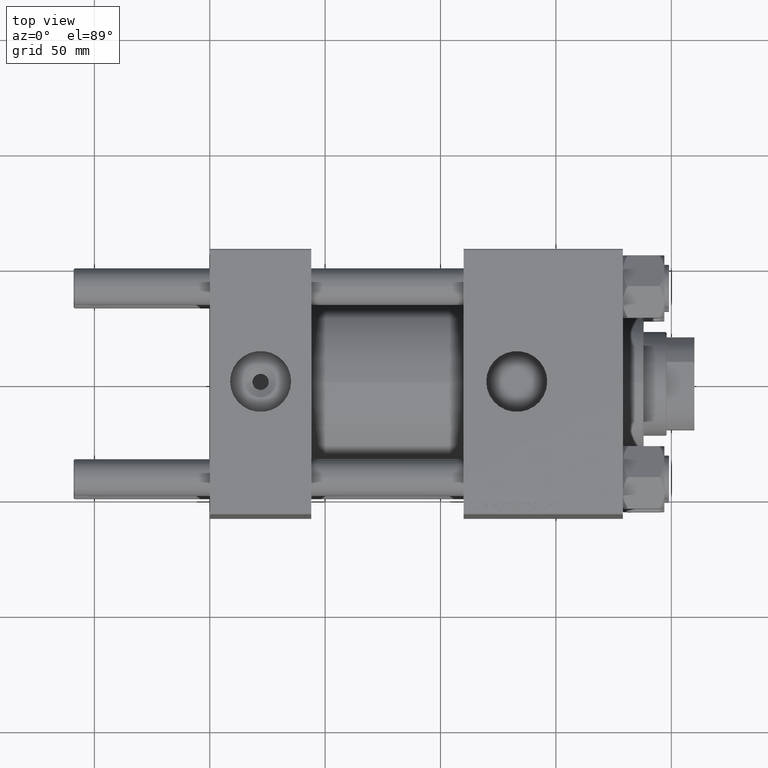
[diagram: clean part render]
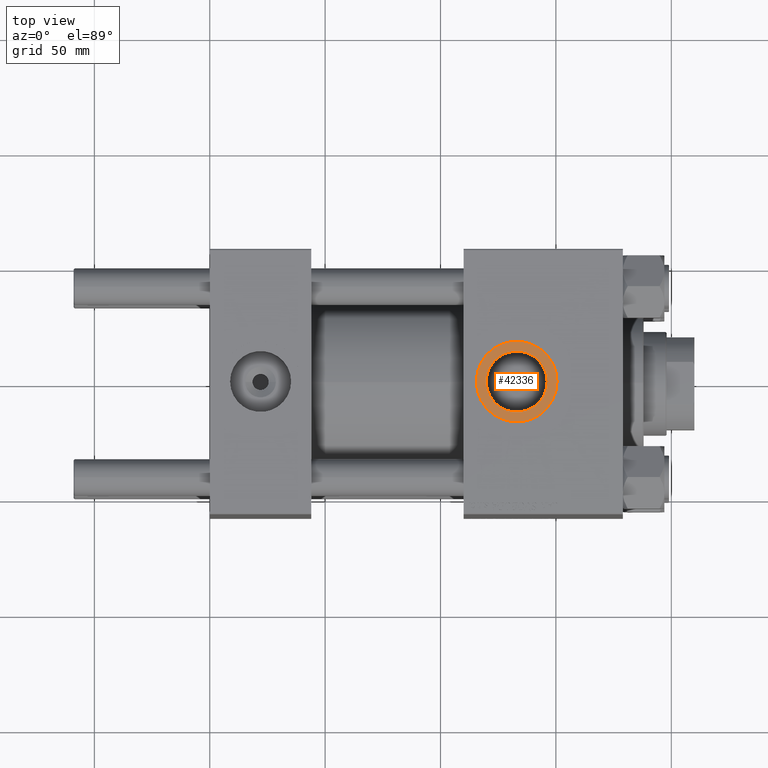
[diagram: same view with one face highlighted and labeled with its STEP entity id]
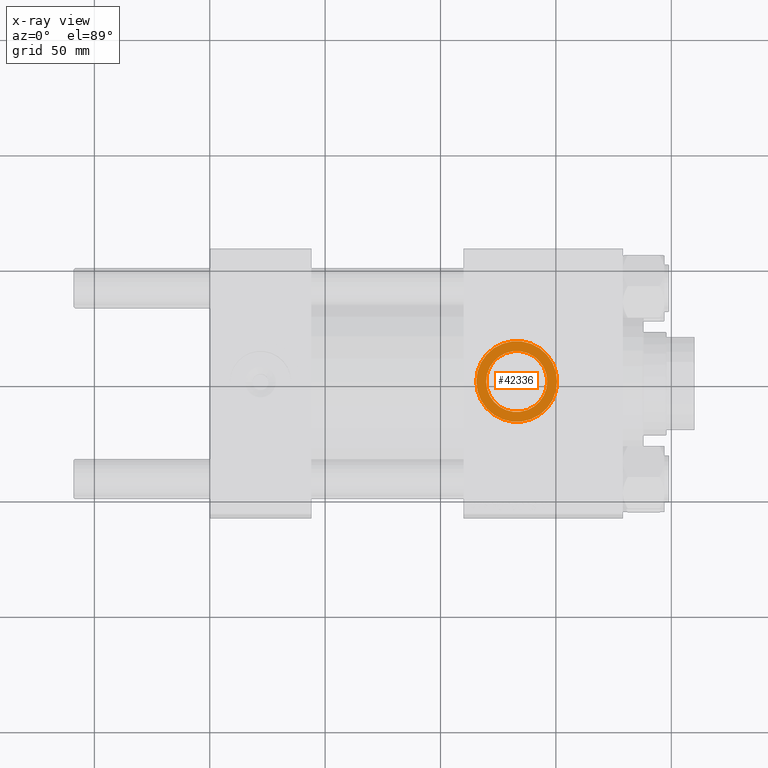
[diagram: x-ray of the same camera — body ghosted, the highlighted face saturated]
A machine part, top view. The second image highlights one B-rep face of the part: STEP entity #42336.
The next image is the same camera in x-ray: the body ghosted, the highlighted face saturated — about 0% of this face is hidden behind the body in this view.
In plain terms, the highlighted planar face has unit normal (0, 0, 1).
Its self-contained STEP definition (entity closure, byte-faithful):
#549 = DIRECTION ( 'NONE',  ( 0.000000000000000000, 0.000000000000000000, 1.000000000000000000 ) ) ;
#2524 = DIRECTION ( 'NONE',  ( 0.000000000000000000, 0.000000000000000000, 1.000000000000000000 ) ) ;
#3341 = CARTESIAN_POINT ( 'NONE',  ( 150.5000000000000284, -6.938893903907229955E-15, 57.30000000000000426 ) ) ;
#3408 = AXIS2_PLACEMENT_3D ( 'NONE', #38984, #2524, #50635 ) ;
#3451 = AXIS2_PLACEMENT_3D ( 'NONE', #25213, #47888, #7435 ) ;
#3536 = CARTESIAN_POINT ( 'NONE',  ( 133.0000000000000000, -6.938893903907229955E-15, 57.30000000000000426 ) ) ;
#4716 = DIRECTION ( 'NONE',  ( 1.000000000000000000, 0.000000000000000000, 0.000000000000000000 ) ) ;
#4971 = EDGE_CURVE ( 'NONE', #33843, #26056, #21984, .T. ) ;
#5145 = CIRCLE ( 'NONE', #3451, 17.50000000000001421 ) ;
#5732 = ORIENTED_EDGE ( 'NONE', *, *, #6065, .T. ) ;
#6065 = EDGE_CURVE ( 'NONE', #26056, #33843, #5145, .T. ) ;
#7122 = CIRCLE ( 'NONE', #13886, 13.22000000000000952 ) ;
#7435 = DIRECTION ( 'NONE',  ( 1.000000000000000000, 0.000000000000000000, 0.000000000000000000 ) ) ;
#8941 = EDGE_LOOP ( 'NONE', ( #28330, #40914 ) ) ;
#12454 = CARTESIAN_POINT ( 'NONE',  ( 133.0000000000000000, -6.938893903907229955E-15, 57.30000000000000426 ) ) ;
#13886 = AXIS2_PLACEMENT_3D ( 'NONE', #3536, #23617, #47954 ) ;
#13995 = AXIS2_PLACEMENT_3D ( 'NONE', #21350, #41708, #4716 ) ;
#16670 = DIRECTION ( 'NONE',  ( 1.000000000000000000, 0.000000000000000000, -0.000000000000000000 ) ) ;
#21350 = CARTESIAN_POINT ( 'NONE',  ( 133.0000000000000000, -6.938893903907229955E-15, 57.30000000000000426 ) ) ;
#21615 = CIRCLE ( 'NONE', #13995, 13.22000000000000952 ) ;
#21984 = CIRCLE ( 'NONE', #3408, 17.50000000000001421 ) ;
#23617 = DIRECTION ( 'NONE',  ( -0.000000000000000000, -0.000000000000000000, -1.000000000000000000 ) ) ;
#25213 = CARTESIAN_POINT ( 'NONE',  ( 133.0000000000000000, -6.938893903907229955E-15, 57.30000000000000426 ) ) ;
#26056 = VERTEX_POINT ( 'NONE', #39157 ) ;
#28330 = ORIENTED_EDGE ( 'NONE', *, *, #33570, .T. ) ;
#30183 = EDGE_CURVE ( 'NONE', #32262, #43329, #7122, .T. ) ;
#32262 = VERTEX_POINT ( 'NONE', #50026 ) ;
#32534 = FACE_BOUND ( 'NONE', #8941, .T. ) ;
#33570 = EDGE_CURVE ( 'NONE', #43329, #32262, #21615, .T. ) ;
#33843 = VERTEX_POINT ( 'NONE', #3341 ) ;
#35931 = EDGE_LOOP ( 'NONE', ( #36654, #5732 ) ) ;
#36654 = ORIENTED_EDGE ( 'NONE', *, *, #4971, .T. ) ;
#37031 = FACE_OUTER_BOUND ( 'NONE', #35931, .T. ) ;
#37845 = AXIS2_PLACEMENT_3D ( 'NONE', #12454, #549, #16670 ) ;
#38984 = CARTESIAN_POINT ( 'NONE',  ( 133.0000000000000000, -6.938893903907229955E-15, 57.30000000000000426 ) ) ;
#39157 = CARTESIAN_POINT ( 'NONE',  ( 115.4999999999999858, -4.795762005399357763E-15, 57.30000000000000426 ) ) ;
#40914 = ORIENTED_EDGE ( 'NONE', *, *, #30183, .T. ) ;
#41708 = DIRECTION ( 'NONE',  ( -0.000000000000000000, -0.000000000000000000, -1.000000000000000000 ) ) ;
#42336 = ADVANCED_FACE ( 'NONE', ( #32534, #37031 ), #48671, .T. ) ;
#43329 = VERTEX_POINT ( 'NONE', #50739 ) ;
#47888 = DIRECTION ( 'NONE',  ( 0.000000000000000000, 0.000000000000000000, 1.000000000000000000 ) ) ;
#47954 = DIRECTION ( 'NONE',  ( 1.000000000000000000, 0.000000000000000000, 0.000000000000000000 ) ) ;
#48671 = PLANE ( 'NONE',  #37845 ) ;
#50026 = CARTESIAN_POINT ( 'NONE',  ( 146.2200000000000273, -5.319910835434427226E-15, 57.30000000000000426 ) ) ;
#50635 = DIRECTION ( 'NONE',  ( 1.000000000000000000, 0.000000000000000000, 0.000000000000000000 ) ) ;
#50739 = CARTESIAN_POINT ( 'NONE',  ( 119.7800000000000011, -6.938893903907229955E-15, 57.30000000000000426 ) ) ;